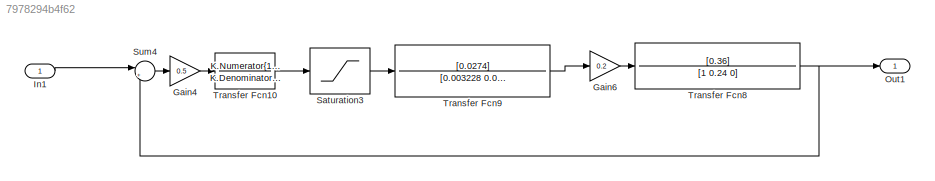
MODEL mdl_7978294b4f62
KIND model
CONFIG AbsTol = auto
CONFIG EnableMultiTasking = off
CONFIG FixedStep = auto
CONFIG MaxStep = auto
CONFIG MinStep = auto
CONFIG RelTol = 1e-3
CONFIG SampleTimeConstraint = Unconstrained
CONFIG SolverName = VariableStepAuto
CONFIG StartTime = 0.0
CONFIG StopTime = 10.0
BLOCK [Gain] Gain4
  Gain = 0.5
BLOCK [Gain] Gain6
  Gain = 0.2
BLOCK [Inport] In1
BLOCK [Outport] Out1
BLOCK [Saturate] Saturation3
  LowerLimit = -20
  UpperLimit = 20
BLOCK [Sum] Sum4
  Inputs = |+-
  Ports = [2, 1]
BLOCK [TransferFcn] Transfer Fcn10
  Denominator = K.Denominator{1,1}
  Numerator = K.Numerator{1,1}
BLOCK [TransferFcn] Transfer Fcn8
  Denominator = [1 0.24 0]
  Numerator = [0.36]
BLOCK [TransferFcn] Transfer Fcn9
  Denominator = [0.003228 0.003508 0]
  Numerator = [0.0274]
LINE Gain4:1 -> Transfer Fcn10:1
LINE Gain6:1 -> Transfer Fcn8:1
LINE In1:1 -> Sum4:1
LINE Saturation3:1 -> Transfer Fcn9:1
LINE Sum4:1 -> Gain4:1
LINE Transfer Fcn10:1 -> Saturation3:1
NET Transfer Fcn8:1 -> Out1:1, Sum4:2
LINE Transfer Fcn9:1 -> Gain6:1
note: NET lines group one-source signal fan-out (src -> all destinations, sorted); 1:1 wires keep LINE
